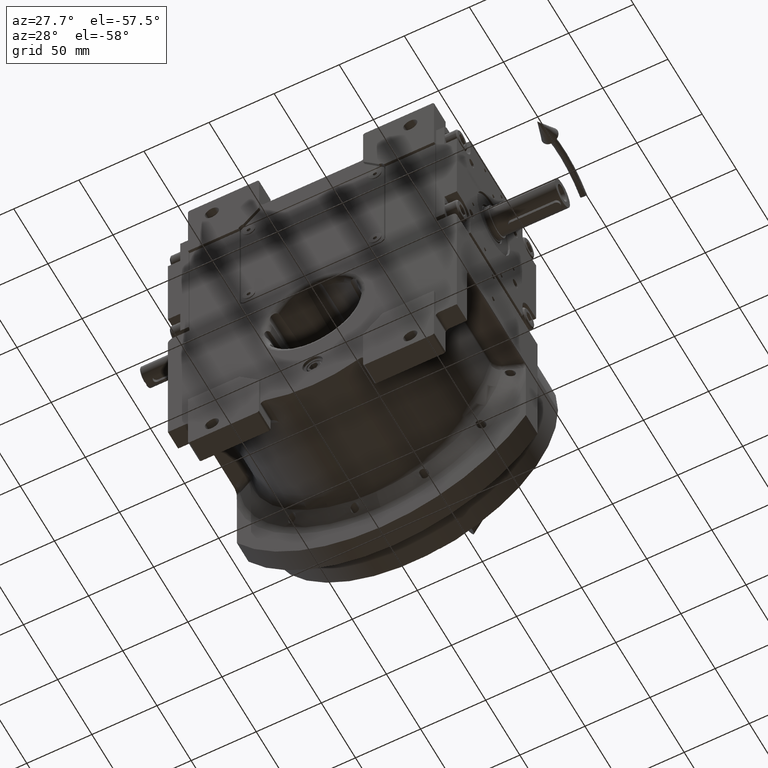
[diagram: clean part render]
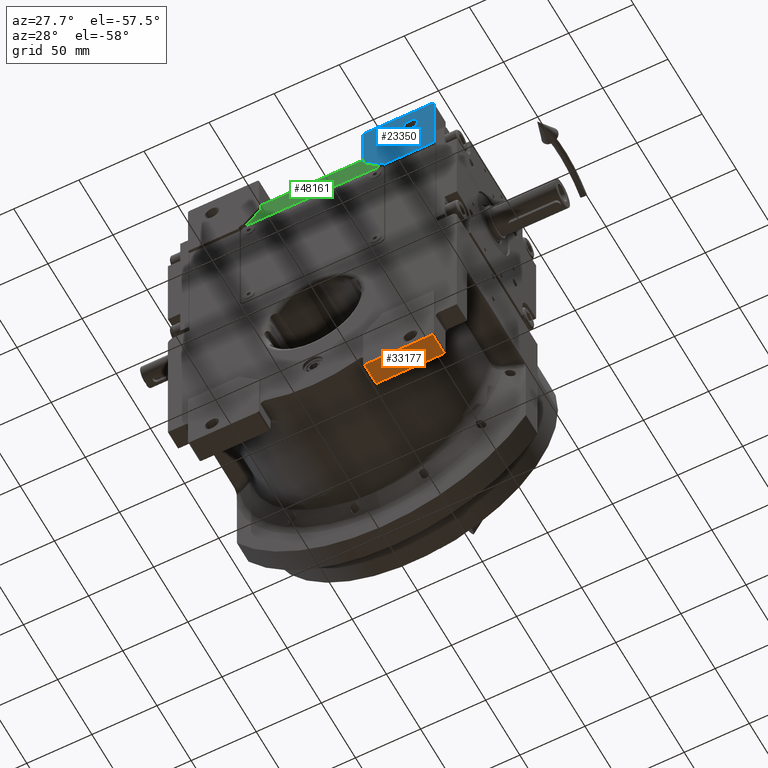
[diagram: same view with three faces highlighted in distinct colors, each labeled with its STEP entity id]
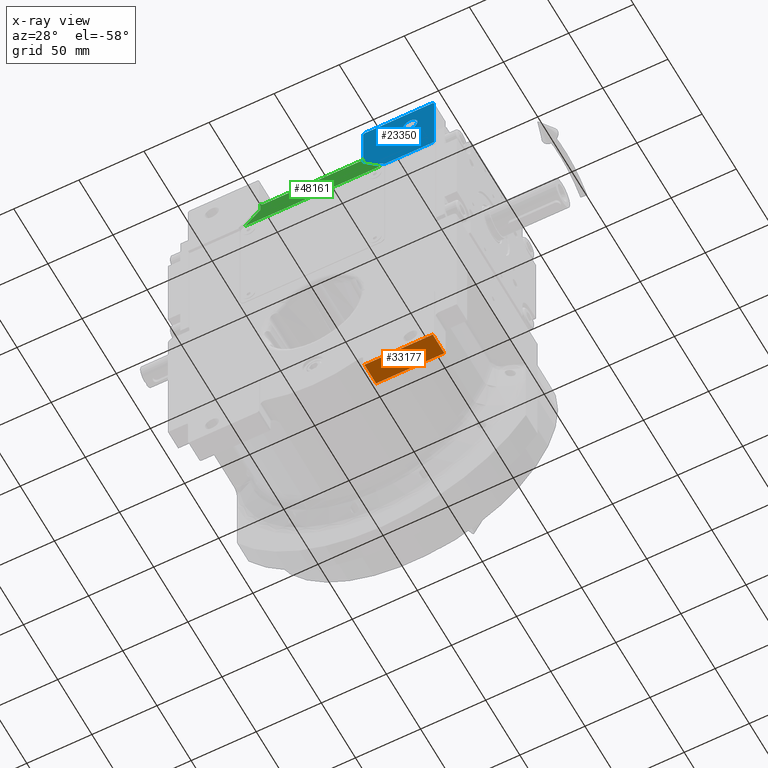
[diagram: x-ray of the same camera — body ghosted, the three highlighted faces saturated]
A machine part, auxiliary view with three faces highlighted in distinct colors.
The next image is the same camera in x-ray (body ghosted, the three faces saturated) — at least one of them is partly hidden behind the body in this view.
Their STEP definitions:

[orange] entity #33177 — the highlighted planar face has unit normal (0, 0, -1).
#2144 = LINE ( 'NONE', #49972, #65009 ) ;
#10198 = VERTEX_POINT ( 'NONE', #24310 ) ;
#10494 = LINE ( 'NONE', #31828, #47410 ) ;
#10896 = EDGE_CURVE ( 'NONE', #44861, #54151, #2144, .T. ) ;
#11399 = CARTESIAN_POINT ( 'NONE',  ( 41.00000000000000000, -55.50000000000000000, -100.0000000000000000 ) ) ;
#12225 = CARTESIAN_POINT ( 'NONE',  ( 93.50000000000000000, -38.50000000000000000, -100.0000000000000000 ) ) ;
#16543 = DIRECTION ( 'NONE',  ( 0.000000000000000000, 1.000000000000000000, 0.000000000000000000 ) ) ;
#17541 = LINE ( 'NONE', #21683, #65438 ) ;
#19129 = AXIS2_PLACEMENT_3D ( 'NONE', #64977, #38160, #53968 ) ;
#21683 = CARTESIAN_POINT ( 'NONE',  ( 41.00000000000000000, -55.50000000000000000, -100.0000000000000000 ) ) ;
#22315 = EDGE_LOOP ( 'NONE', ( #47794, #36599, #23609, #43125 ) ) ;
#23609 = ORIENTED_EDGE ( 'NONE', *, *, #29363, .F. ) ;
#24310 = CARTESIAN_POINT ( 'NONE',  ( 93.50000000000000000, -55.50000000000000000, -100.0000000000000000 ) ) ;
#24779 = EDGE_CURVE ( 'NONE', #58172, #44861, #32744, .T. ) ;
#27496 = FACE_OUTER_BOUND ( 'NONE', #22315, .T. ) ;
#28962 = DIRECTION ( 'NONE',  ( 1.000000000000000000, 0.000000000000000000, 0.000000000000000000 ) ) ;
#28980 = CARTESIAN_POINT ( 'NONE',  ( 41.00000000000000000, -55.50000000000000000, -100.0000000000000000 ) ) ;
#29363 = EDGE_CURVE ( 'NONE', #58172, #10198, #17541, .T. ) ;
#31828 = CARTESIAN_POINT ( 'NONE',  ( 93.50000000000000000, -55.50000000000000000, -100.0000000000000000 ) ) ;
#32744 = LINE ( 'NONE', #11399, #52867 ) ;
#32991 = PLANE ( 'NONE',  #19129 ) ;
#33035 = DIRECTION ( 'NONE',  ( 1.000000000000000000, 0.000000000000000000, 0.000000000000000000 ) ) ;
#33177 = ADVANCED_FACE ( 'NONE', ( #27496 ), #32991, .T. ) ;
#36599 = ORIENTED_EDGE ( 'NONE', *, *, #39138, .F. ) ;
#38160 = DIRECTION ( 'NONE',  ( 0.000000000000000000, 0.000000000000000000, -1.000000000000000000 ) ) ;
#39138 = EDGE_CURVE ( 'NONE', #10198, #54151, #10494, .T. ) ;
#40226 = DIRECTION ( 'NONE',  ( 0.000000000000000000, 1.000000000000000000, 0.000000000000000000 ) ) ;
#43125 = ORIENTED_EDGE ( 'NONE', *, *, #24779, .T. ) ;
#44861 = VERTEX_POINT ( 'NONE', #60018 ) ;
#47410 = VECTOR ( 'NONE', #40226, 1000.000000000000000 ) ;
#47794 = ORIENTED_EDGE ( 'NONE', *, *, #10896, .T. ) ;
#49972 = CARTESIAN_POINT ( 'NONE',  ( 41.00000000000000000, -38.50000000000000000, -100.0000000000000000 ) ) ;
#52867 = VECTOR ( 'NONE', #16543, 1000.000000000000000 ) ;
#53968 = DIRECTION ( 'NONE',  ( 1.000000000000000000, 0.000000000000000000, 0.000000000000000000 ) ) ;
#54151 = VERTEX_POINT ( 'NONE', #12225 ) ;
#58172 = VERTEX_POINT ( 'NONE', #28980 ) ;
#60018 = CARTESIAN_POINT ( 'NONE',  ( 41.00000000000000000, -38.50000000000000000, -100.0000000000000000 ) ) ;
#64977 = CARTESIAN_POINT ( 'NONE',  ( 40.00000000000000000, -38.50000000000000000, -100.0000000000000000 ) ) ;
#65009 = VECTOR ( 'NONE', #28962, 1000.000000000000000 ) ;
#65438 = VECTOR ( 'NONE', #33035, 1000.000000000000000 ) ;

[blue] entity #23350 — the highlighted planar face has unit normal (0, -1, 0).
#410 = VERTEX_POINT ( 'NONE', #37449 ) ;
#1079 = AXIS2_PLACEMENT_3D ( 'NONE', #31705, #12085, #27583 ) ;
#2911 = LINE ( 'NONE', #19411, #37076 ) ;
#3684 = EDGE_CURVE ( 'NONE', #52433, #50637, #64648, .T. ) ;
#3735 = CARTESIAN_POINT ( 'NONE',  ( 39.99999999999929656, -55.50000000000000000, 192.0000000000000000 ) ) ;
#3866 = CARTESIAN_POINT ( 'NONE',  ( 93.50000000000000000, -55.50000000000000000, 193.0000000000000000 ) ) ;
#4186 = EDGE_CURVE ( 'NONE', #43522, #13615, #44489, .T. ) ;
#4408 = LINE ( 'NONE', #35373, #9280 ) ;
#4536 = ORIENTED_EDGE ( 'NONE', *, *, #66578, .T. ) ;
#4599 = ORIENTED_EDGE ( 'NONE', *, *, #18532, .T. ) ;
#6530 = AXIS2_PLACEMENT_3D ( 'NONE', #31915, #20919, #67083 ) ;
#7787 = VERTEX_POINT ( 'NONE', #28600 ) ;
#7846 = CARTESIAN_POINT ( 'NONE',  ( 76.20000000000000284, -55.50000000000000000, 178.0000000000000000 ) ) ;
#9280 = VECTOR ( 'NONE', #9889, 1000.000000000000000 ) ;
#9414 = EDGE_CURVE ( 'NONE', #45807, #7787, #4408, .T. ) ;
#9889 = DIRECTION ( 'NONE',  ( 0.000000000000000000, 0.000000000000000000, -1.000000000000000000 ) ) ;
#10898 = CARTESIAN_POINT ( 'NONE',  ( 93.50000000000000000, -55.50000000000000000, 193.0000000000000000 ) ) ;
#11748 = PLANE ( 'NONE',  #1079 ) ;
#12085 = DIRECTION ( 'NONE',  ( 0.000000000000000000, -1.000000000000000000, 0.000000000000000000 ) ) ;
#12109 = VERTEX_POINT ( 'NONE', #21084 ) ;
#12981 = ORIENTED_EDGE ( 'NONE', *, *, #9414, .T. ) ;
#13417 = CIRCLE ( 'NONE', #51870, 5.500000000000005329 ) ;
#13615 = VERTEX_POINT ( 'NONE', #3866 ) ;
#14048 = DIRECTION ( 'NONE',  ( 0.000000000000000000, 1.000000000000000000, 0.000000000000000000 ) ) ;
#14770 = VERTEX_POINT ( 'NONE', #26623 ) ;
#18226 = ORIENTED_EDGE ( 'NONE', *, *, #28941, .T. ) ;
#18532 = EDGE_CURVE ( 'NONE', #47942, #45807, #38107, .T. ) ;
#18636 = CARTESIAN_POINT ( 'NONE',  ( 55.87298334620739837, -55.50000000000000000, 143.0000000000000000 ) ) ;
#18713 = DIRECTION ( 'NONE',  ( 0.000000000000000000, 0.000000000000000000, 1.000000000000000000 ) ) ;
#19210 = DIRECTION ( 'NONE',  ( 1.000000000000000000, 0.000000000000000000, 0.000000000000000000 ) ) ;
#19411 = CARTESIAN_POINT ( 'NONE',  ( 94.50000000000000000, -55.50000000000000000, 143.0000000000000000 ) ) ;
#20564 = EDGE_CURVE ( 'NONE', #410, #43522, #2911, .T. ) ;
#20685 = ORIENTED_EDGE ( 'NONE', *, *, #3684, .F. ) ;
#20919 = DIRECTION ( 'NONE',  ( 0.000000000000000000, 1.000000000000000000, 0.000000000000000000 ) ) ;
#21084 = CARTESIAN_POINT ( 'NONE',  ( 70.70000000000000284, -55.50000000000000000, 178.0000000000000000 ) ) ;
#23350 = ADVANCED_FACE ( 'NONE', ( #48228, #43033 ), #11748, .T. ) ;
#26623 = CARTESIAN_POINT ( 'NONE',  ( 81.69999999999998863, -55.50000000000000000, 178.0000000000000000 ) ) ;
#27583 = DIRECTION ( 'NONE',  ( -1.000000000000000000, 0.000000000000000000, 0.000000000000000000 ) ) ;
#28168 = DIRECTION ( 'NONE',  ( 0.9682458365518541443, 0.000000000000000000, 0.2500000000000004441 ) ) ;
#28600 = CARTESIAN_POINT ( 'NONE',  ( 39.99999999999929656, -55.50000000000000000, 158.0000000000000000 ) ) ;
#28619 = ORIENTED_EDGE ( 'NONE', *, *, #20564, .T. ) ;
#28941 = EDGE_CURVE ( 'NONE', #52433, #410, #66141, .T. ) ;
#29017 = VECTOR ( 'NONE', #64396, 1000.000000000000114 ) ;
#29064 = ORIENTED_EDGE ( 'NONE', *, *, #67027, .T. ) ;
#31705 = CARTESIAN_POINT ( 'NONE',  ( 0.000000000000000000, -55.50000000000000000, 0.000000000000000000 ) ) ;
#31915 = CARTESIAN_POINT ( 'NONE',  ( 76.20000000000000284, -55.50000000000000000, 178.0000000000000000 ) ) ;
#32021 = VECTOR ( 'NONE', #42210, 1000.000000000000000 ) ;
#32118 = CARTESIAN_POINT ( 'NONE',  ( 94.50000000000000000, -55.50000000000000000, 192.0000000000000000 ) ) ;
#32682 = CARTESIAN_POINT ( 'NONE',  ( 51.99999999999930367, -55.50000000000000000, 146.0000000000000000 ) ) ;
#32704 = EDGE_CURVE ( 'NONE', #7787, #50637, #37897, .T. ) ;
#33956 = CARTESIAN_POINT ( 'NONE',  ( 40.99999999999930367, -55.50000000000000000, 193.0000000000000000 ) ) ;
#35373 = CARTESIAN_POINT ( 'NONE',  ( 39.99999999999929656, -55.50000000000000000, 192.0000000000000000 ) ) ;
#37076 = VECTOR ( 'NONE', #18713, 1000.000000000000000 ) ;
#37449 = CARTESIAN_POINT ( 'NONE',  ( 94.50000000000000000, -55.50000000000000000, 143.0000000000000000 ) ) ;
#37897 = LINE ( 'NONE', #53368, #29017 ) ;
#38107 = LINE ( 'NONE', #33956, #50190 ) ;
#40867 = ORIENTED_EDGE ( 'NONE', *, *, #4186, .T. ) ;
#42210 = DIRECTION ( 'NONE',  ( -1.000000000000000000, 0.000000000000000000, 0.000000000000000000 ) ) ;
#42644 = VECTOR ( 'NONE', #65136, 1000.000000000000114 ) ;
#43033 = FACE_OUTER_BOUND ( 'NONE', #57648, .T. ) ;
#43522 = VERTEX_POINT ( 'NONE', #32118 ) ;
#44141 = CARTESIAN_POINT ( 'NONE',  ( 94.50000000000000000, -55.50000000000000000, 192.0000000000000000 ) ) ;
#44489 = LINE ( 'NONE', #44141, #42644 ) ;
#44499 = VECTOR ( 'NONE', #65466, 1000.000000000000000 ) ;
#45807 = VERTEX_POINT ( 'NONE', #3735 ) ;
#45990 = CARTESIAN_POINT ( 'NONE',  ( 55.87298334620739837, -55.50000000000000000, 143.0000000000000000 ) ) ;
#47773 = EDGE_LOOP ( 'NONE', ( #29064, #61353 ) ) ;
#47942 = VERTEX_POINT ( 'NONE', #57038 ) ;
#48228 = FACE_BOUND ( 'NONE', #47773, .T. ) ;
#50190 = VECTOR ( 'NONE', #59099, 1000.000000000000114 ) ;
#50637 = VERTEX_POINT ( 'NONE', #32682 ) ;
#51870 = AXIS2_PLACEMENT_3D ( 'NONE', #7846, #14048, #19210 ) ;
#52433 = VERTEX_POINT ( 'NONE', #45990 ) ;
#52865 = LINE ( 'NONE', #10898, #32021 ) ;
#53368 = CARTESIAN_POINT ( 'NONE',  ( 39.99999999999929656, -55.50000000000000000, 158.0000000000000000 ) ) ;
#54304 = CARTESIAN_POINT ( 'NONE',  ( 52.00000000000000000, -55.50000000000000000, 142.0000000000000000 ) ) ;
#56988 = EDGE_CURVE ( 'NONE', #12109, #14770, #65888, .T. ) ;
#57038 = CARTESIAN_POINT ( 'NONE',  ( 40.99999999999930367, -55.50000000000000000, 193.0000000000000000 ) ) ;
#57648 = EDGE_LOOP ( 'NONE', ( #12981, #66962, #20685, #18226, #28619, #40867, #4536, #4599 ) ) ;
#59099 = DIRECTION ( 'NONE',  ( -0.7071067811865474617, 0.000000000000000000, -0.7071067811865474617 ) ) ;
#60484 = DIRECTION ( 'NONE',  ( 0.000000000000000000, -1.000000000000000000, 0.000000000000000000 ) ) ;
#61353 = ORIENTED_EDGE ( 'NONE', *, *, #56988, .T. ) ;
#64396 = DIRECTION ( 'NONE',  ( 0.7071067811865474617, 0.000000000000000000, -0.7071067811865474617 ) ) ;
#64648 = CIRCLE ( 'NONE', #65721, 3.999999999999996891 ) ;
#65136 = DIRECTION ( 'NONE',  ( -0.7071067811865474617, 0.000000000000000000, 0.7071067811865474617 ) ) ;
#65466 = DIRECTION ( 'NONE',  ( 1.000000000000000000, 0.000000000000000000, 0.000000000000000000 ) ) ;
#65721 = AXIS2_PLACEMENT_3D ( 'NONE', #54304, #60484, #28168 ) ;
#65888 = CIRCLE ( 'NONE', #6530, 5.500000000000005329 ) ;
#66141 = LINE ( 'NONE', #18636, #44499 ) ;
#66578 = EDGE_CURVE ( 'NONE', #13615, #47942, #52865, .T. ) ;
#66962 = ORIENTED_EDGE ( 'NONE', *, *, #32704, .T. ) ;
#67027 = EDGE_CURVE ( 'NONE', #14770, #12109, #13417, .T. ) ;
#67083 = DIRECTION ( 'NONE',  ( -1.000000000000000000, 0.000000000000000000, 0.000000000000000000 ) ) ;

[green] entity #48161 — the highlighted planar face has unit normal (0, 1, 0).
#1959 = EDGE_CURVE ( 'NONE', #45347, #8631, #28451, .T. ) ;
#2802 = VECTOR ( 'NONE', #48526, 1000.000000000000000 ) ;
#3675 = DIRECTION ( 'NONE',  ( 0.000000000000000000, 1.000000000000000000, 0.000000000000000000 ) ) ;
#4184 = AXIS2_PLACEMENT_3D ( 'NONE', #45736, #66747, #21254 ) ;
#5244 = LINE ( 'NONE', #57879, #41213 ) ;
#7161 = CARTESIAN_POINT ( 'NONE',  ( 39.99999999999929656, -53.50000000000000000, 166.5000000000000000 ) ) ;
#7491 = ORIENTED_EDGE ( 'NONE', *, *, #53804, .F. ) ;
#8403 = AXIS2_PLACEMENT_3D ( 'NONE', #54238, #39747, #23615 ) ;
#8631 = VERTEX_POINT ( 'NONE', #35205 ) ;
#8720 = VERTEX_POINT ( 'NONE', #22433 ) ;
#8965 = EDGE_CURVE ( 'NONE', #8720, #8631, #25477, .T. ) ;
#11140 = CARTESIAN_POINT ( 'NONE',  ( -51.99999999999930367, -53.50000000000000000, 146.0000000000000000 ) ) ;
#13265 = FACE_OUTER_BOUND ( 'NONE', #18838, .T. ) ;
#15160 = CARTESIAN_POINT ( 'NONE',  ( -51.99999999999940314, -53.50000000000000000, 146.0000000000000000 ) ) ;
#18325 = ORIENTED_EDGE ( 'NONE', *, *, #45199, .F. ) ;
#18838 = EDGE_LOOP ( 'NONE', ( #29872, #7491, #28053, #18325, #55377, #53886, #34644, #51064 ) ) ;
#19156 = VERTEX_POINT ( 'NONE', #15160 ) ;
#19158 = CARTESIAN_POINT ( 'NONE',  ( -36.99999999999929656, -53.50000000000000000, 166.5000000000000000 ) ) ;
#19659 = EDGE_CURVE ( 'NONE', #42323, #29439, #65737, .T. ) ;
#21254 = DIRECTION ( 'NONE',  ( 1.000000000000000000, 0.000000000000000000, 0.000000000000000000 ) ) ;
#22377 = LINE ( 'NONE', #59202, #2802 ) ;
#22433 = CARTESIAN_POINT ( 'NONE',  ( -39.99999999999929656, -53.50000000000000000, 158.0000000000000000 ) ) ;
#23615 = DIRECTION ( 'NONE',  ( 1.000000000000000000, 0.000000000000000000, 0.000000000000000000 ) ) ;
#25133 = VECTOR ( 'NONE', #40494, 1000.000000000000000 ) ;
#25157 = AXIS2_PLACEMENT_3D ( 'NONE', #19158, #3675, #34997 ) ;
#25477 = LINE ( 'NONE', #36128, #67495 ) ;
#26485 = VERTEX_POINT ( 'NONE', #47909 ) ;
#27000 = LINE ( 'NONE', #11140, #35680 ) ;
#28053 = ORIENTED_EDGE ( 'NONE', *, *, #19659, .T. ) ;
#28451 = CIRCLE ( 'NONE', #25157, 3.000000000000002665 ) ;
#29335 = EDGE_CURVE ( 'NONE', #26485, #19156, #22377, .T. ) ;
#29439 = VERTEX_POINT ( 'NONE', #61249 ) ;
#29872 = ORIENTED_EDGE ( 'NONE', *, *, #58206, .F. ) ;
#31392 = DIRECTION ( 'NONE',  ( 1.000000000000000000, 0.000000000000000000, 0.000000000000000000 ) ) ;
#32751 = CARTESIAN_POINT ( 'NONE',  ( -36.99999999999929656, -53.50000000000000000, 163.5000000000000000 ) ) ;
#34644 = ORIENTED_EDGE ( 'NONE', *, *, #44780, .F. ) ;
#34997 = DIRECTION ( 'NONE',  ( 0.000000000000000000, 0.000000000000000000, -1.000000000000000000 ) ) ;
#35205 = CARTESIAN_POINT ( 'NONE',  ( -39.99999999999929656, -53.50000000000000000, 166.5000000000000000 ) ) ;
#35680 = VECTOR ( 'NONE', #47631, 1000.000000000000000 ) ;
#36128 = CARTESIAN_POINT ( 'NONE',  ( -39.99999999999929656, -53.50000000000000000, 158.0000000000000000 ) ) ;
#39747 = DIRECTION ( 'NONE',  ( -0.000000000000000000, 1.000000000000000000, 0.000000000000000000 ) ) ;
#40494 = DIRECTION ( 'NONE',  ( 0.000000000000000000, 0.000000000000000000, -1.000000000000000000 ) ) ;
#40645 = DIRECTION ( 'NONE',  ( 0.7071067811865480168, 0.000000000000000000, -0.7071067811865470176 ) ) ;
#40935 = DIRECTION ( 'NONE',  ( 0.000000000000000000, 0.000000000000000000, 1.000000000000000000 ) ) ;
#40978 = CARTESIAN_POINT ( 'NONE',  ( 39.99999999999929656, -53.50000000000000000, 158.0000000000000000 ) ) ;
#41213 = VECTOR ( 'NONE', #31392, 1000.000000000000000 ) ;
#42323 = VERTEX_POINT ( 'NONE', #66608 ) ;
#44780 = EDGE_CURVE ( 'NONE', #19156, #8720, #27000, .T. ) ;
#45199 = EDGE_CURVE ( 'NONE', #45347, #29439, #5244, .T. ) ;
#45347 = VERTEX_POINT ( 'NONE', #32751 ) ;
#45736 = CARTESIAN_POINT ( 'NONE',  ( 36.99999999999934630, -53.50000000000000000, 166.5000000000000000 ) ) ;
#45839 = LINE ( 'NONE', #40978, #64898 ) ;
#47548 = CARTESIAN_POINT ( 'NONE',  ( 39.99999999999929656, -53.50000000000000000, 158.0000000000000000 ) ) ;
#47631 = DIRECTION ( 'NONE',  ( 0.7071067811865480168, 0.000000000000000000, 0.7071067811865470176 ) ) ;
#47909 = CARTESIAN_POINT ( 'NONE',  ( 52.00000000000000000, -53.50000000000000000, 146.0000000000000000 ) ) ;
#48161 = ADVANCED_FACE ( 'NONE', ( #13265 ), #60764, .F. ) ;
#48526 = DIRECTION ( 'NONE',  ( -1.000000000000000000, 0.000000000000000000, 0.000000000000000000 ) ) ;
#48717 = VERTEX_POINT ( 'NONE', #47548 ) ;
#51064 = ORIENTED_EDGE ( 'NONE', *, *, #29335, .F. ) ;
#53804 = EDGE_CURVE ( 'NONE', #42323, #48717, #55300, .T. ) ;
#53886 = ORIENTED_EDGE ( 'NONE', *, *, #8965, .F. ) ;
#54238 = CARTESIAN_POINT ( 'NONE',  ( 0.000000000000000000, -53.50000000000000000, 0.000000000000000000 ) ) ;
#55300 = LINE ( 'NONE', #7161, #25133 ) ;
#55377 = ORIENTED_EDGE ( 'NONE', *, *, #1959, .T. ) ;
#57879 = CARTESIAN_POINT ( 'NONE',  ( -36.99999999999929656, -53.50000000000000000, 163.5000000000000000 ) ) ;
#58206 = EDGE_CURVE ( 'NONE', #48717, #26485, #45839, .T. ) ;
#59202 = CARTESIAN_POINT ( 'NONE',  ( 51.99999999999930367, -53.50000000000000000, 146.0000000000000000 ) ) ;
#60764 = PLANE ( 'NONE',  #8403 ) ;
#61249 = CARTESIAN_POINT ( 'NONE',  ( 36.99999999999934630, -53.50000000000000000, 163.5000000000000000 ) ) ;
#64898 = VECTOR ( 'NONE', #40645, 1000.000000000000000 ) ;
#65737 = CIRCLE ( 'NONE', #4184, 3.000000000000002665 ) ;
#66608 = CARTESIAN_POINT ( 'NONE',  ( 39.99999999999929656, -53.50000000000000000, 166.5000000000000000 ) ) ;
#66747 = DIRECTION ( 'NONE',  ( 0.000000000000000000, 1.000000000000000000, 0.000000000000000000 ) ) ;
#67495 = VECTOR ( 'NONE', #40935, 1000.000000000000000 ) ;